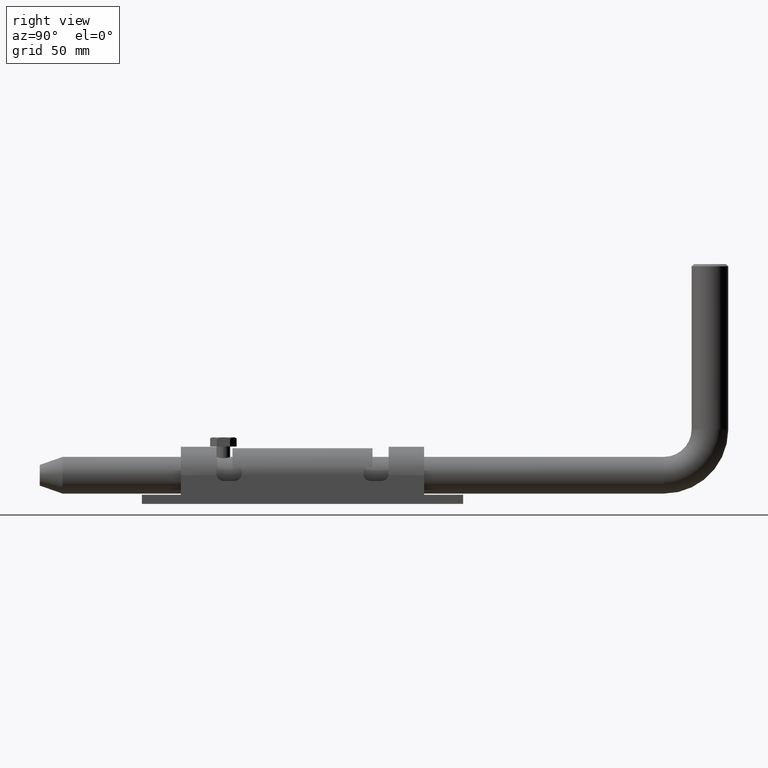
[diagram: clean part render]
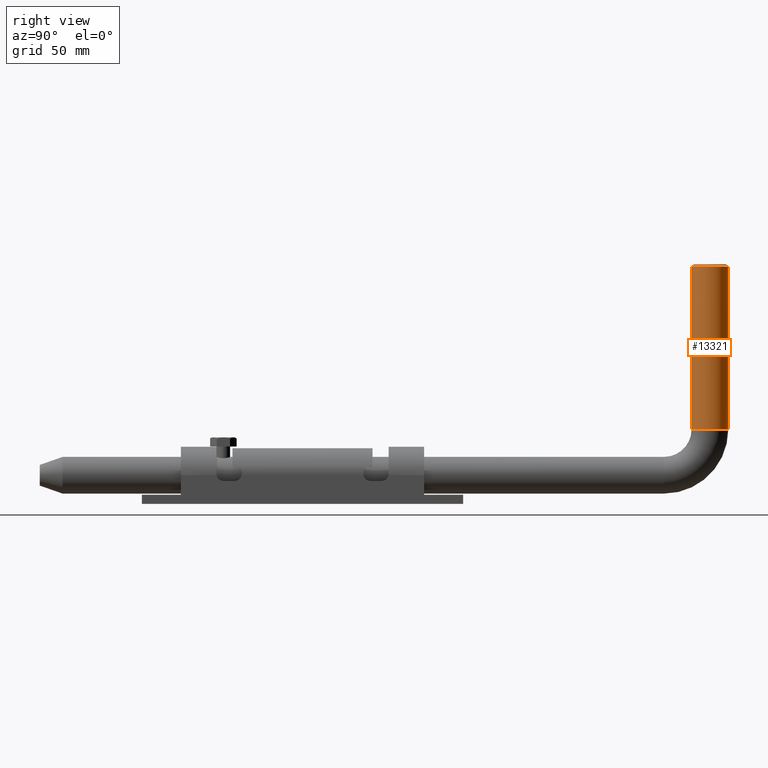
[diagram: same view with one face highlighted and labeled with its STEP entity id]
A machine part, right view. The second image highlights one B-rep face of the part: STEP entity #13321.
In plain terms, the highlighted cylindrical surface (edge-blend (fillet) strip) has radius 8 mm, axis along (0, 0, 1).
Its self-contained STEP definition (entity closure, byte-faithful):
#96 = DIRECTION ( 'NONE',  ( 1.000000000000000000, 0.000000000000000000, 0.000000000000000000 ) ) ;
#169 = CARTESIAN_POINT ( 'NONE',  ( 0.000000000000000000, 291.9999999999999432, 20.00000000000000355 ) ) ;
#244 = DIRECTION ( 'NONE',  ( 0.000000000000000000, -1.000000000000000000, 8.673617379884027583E-16 ) ) ;
#1231 = ORIENTED_EDGE ( 'NONE', *, *, #13297, .T. ) ;
#1729 = VERTEX_POINT ( 'NONE', #17639 ) ;
#1798 = DIRECTION ( 'NONE',  ( 0.000000000000000000, 7.709882115452476194E-16, 1.000000000000000000 ) ) ;
#2115 = DIRECTION ( 'NONE',  ( 0.000000000000000000, -1.000000000000000000, 0.000000000000000000 ) ) ;
#3407 = CIRCLE ( 'NONE', #11852, 8.000000000000000000 ) ;
#4025 = CARTESIAN_POINT ( 'NONE',  ( 9.797174393178882850E-16, 300.0000000000000000, 91.00000000000002842 ) ) ;
#4888 = LINE ( 'NONE', #16339, #11372 ) ;
#5090 = VERTEX_POINT ( 'NONE', #5952 ) ;
#5156 = DIRECTION ( 'NONE',  ( 0.000000000000000000, 7.709882115452476194E-16, 1.000000000000000000 ) ) ;
#5202 = LINE ( 'NONE', #14517, #14537 ) ;
#5483 = CIRCLE ( 'NONE', #13012, 8.000000000000000000 ) ;
#5781 = EDGE_CURVE ( 'NONE', #12727, #11569, #4888, .T. ) ;
#5949 = VERTEX_POINT ( 'NONE', #4025 ) ;
#5952 = CARTESIAN_POINT ( 'NONE',  ( 8.000000000000000000, 292.0000000000000000, 91.00000000000002842 ) ) ;
#6003 = FACE_OUTER_BOUND ( 'NONE', #13820, .T. ) ;
#6101 = DIRECTION ( 'NONE',  ( 0.000000000000000000, 7.709882115452476194E-16, 1.000000000000000000 ) ) ;
#6686 = CARTESIAN_POINT ( 'NONE',  ( 0.000000000000000000, 292.0000000000000000, 91.00000000000002842 ) ) ;
#8261 = ORIENTED_EDGE ( 'NONE', *, *, #5781, .F. ) ;
#8607 = CARTESIAN_POINT ( 'NONE',  ( 0.000000000000000000, 284.0000000000000000, 91.00000000000002842 ) ) ;
#9297 = EDGE_CURVE ( 'NONE', #12727, #1729, #14126, .T. ) ;
#9632 = ORIENTED_EDGE ( 'NONE', *, *, #16002, .T. ) ;
#10021 = CARTESIAN_POINT ( 'NONE',  ( 0.000000000000000000, 292.0000000000000000, 91.00000000000002842 ) ) ;
#10371 = DIRECTION ( 'NONE',  ( 0.000000000000000000, -1.734723475976805615E-16, 1.000000000000000000 ) ) ;
#11372 = VECTOR ( 'NONE', #1798, 1000.000000000000000 ) ;
#11569 = VERTEX_POINT ( 'NONE', #8607 ) ;
#11852 = AXIS2_PLACEMENT_3D ( 'NONE', #10021, #18321, #96 ) ;
#12125 = CARTESIAN_POINT ( 'NONE',  ( 0.000000000000000000, 283.9999999999999432, 20.00000000000000355 ) ) ;
#12727 = VERTEX_POINT ( 'NONE', #12125 ) ;
#13012 = AXIS2_PLACEMENT_3D ( 'NONE', #6686, #18407, #20066 ) ;
#13297 = EDGE_CURVE ( 'NONE', #5090, #11569, #3407, .T. ) ;
#13321 = ADVANCED_FACE ( 'NONE', ( #6003 ), #21001, .T. ) ;
#13538 = AXIS2_PLACEMENT_3D ( 'NONE', #169, #5156, #244 ) ;
#13820 = EDGE_LOOP ( 'NONE', ( #17667, #9632, #19626, #1231, #8261 ) ) ;
#14126 = CIRCLE ( 'NONE', #20957, 8.000000000000007105 ) ;
#14517 = CARTESIAN_POINT ( 'NONE',  ( 9.797174393178825657E-16, 299.9999999999999432, 19.99999999999999645 ) ) ;
#14537 = VECTOR ( 'NONE', #6101, 1000.000000000000000 ) ;
#16002 = EDGE_CURVE ( 'NONE', #1729, #5949, #5202, .T. ) ;
#16339 = CARTESIAN_POINT ( 'NONE',  ( 0.000000000000000000, 283.9999999999999432, 20.00000000000001066 ) ) ;
#17639 = CARTESIAN_POINT ( 'NONE',  ( 9.797174393178815797E-16, 299.9999999999999432, 20.00000000000000355 ) ) ;
#17667 = ORIENTED_EDGE ( 'NONE', *, *, #9297, .T. ) ;
#17989 = EDGE_CURVE ( 'NONE', #5949, #5090, #5483, .T. ) ;
#18321 = DIRECTION ( 'NONE',  ( 0.000000000000000000, 0.000000000000000000, -1.000000000000000000 ) ) ;
#18407 = DIRECTION ( 'NONE',  ( 0.000000000000000000, 0.000000000000000000, -1.000000000000000000 ) ) ;
#19626 = ORIENTED_EDGE ( 'NONE', *, *, #17989, .T. ) ;
#20056 = CARTESIAN_POINT ( 'NONE',  ( 0.000000000000000000, 291.9999999999999432, 20.00000000000000355 ) ) ;
#20066 = DIRECTION ( 'NONE',  ( 1.000000000000000000, 0.000000000000000000, 0.000000000000000000 ) ) ;
#20957 = AXIS2_PLACEMENT_3D ( 'NONE', #20056, #10371, #2115 ) ;
#21001 = CYLINDRICAL_SURFACE ( 'NONE', #13538, 8.000000000000007105 ) ;